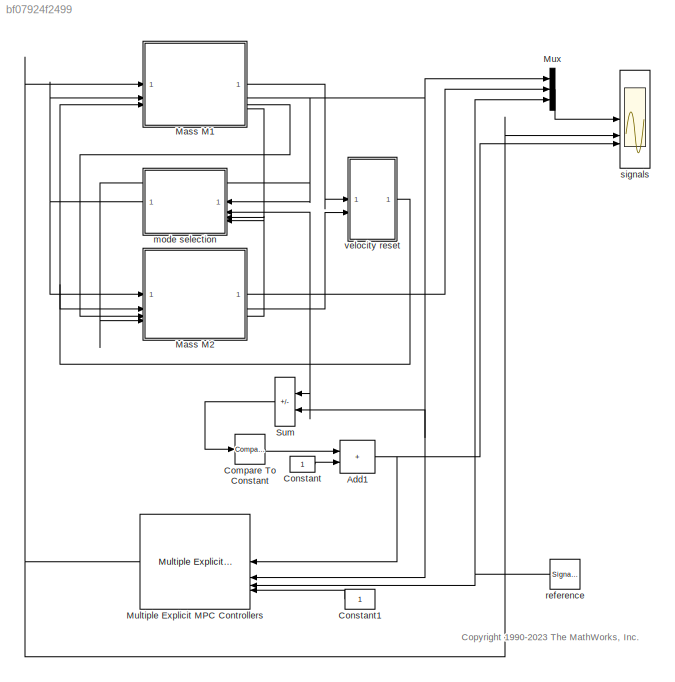
MODEL slx_bf07924f2499
KIND model
CONFIG AbsTol = auto
CONFIG EnableMultiTasking = off
CONFIG FixedStep = 1e-5
CONFIG MaxStep = auto
CONFIG MinStep = auto
CONFIG RelTol = 1e-3
CONFIG SampleTimeConstraint = Unconstrained
CONFIG SolverName = ode45
CONFIG StartTime = 0.0
CONFIG StopTime = 100
BLOCK [Sum] Add1
  IconShape = rectangular
BLOCK [Reference] Compare To Constant  REF=simulink/Logic and Bit
Operations/Compare
To Constant
  SourceBlock = simulink/Logic and Bit\nOperations/Compare\nTo Constant
  SourceType = Compare To Constant
BLOCK [Constant] Constant
BLOCK [Constant] Constant1
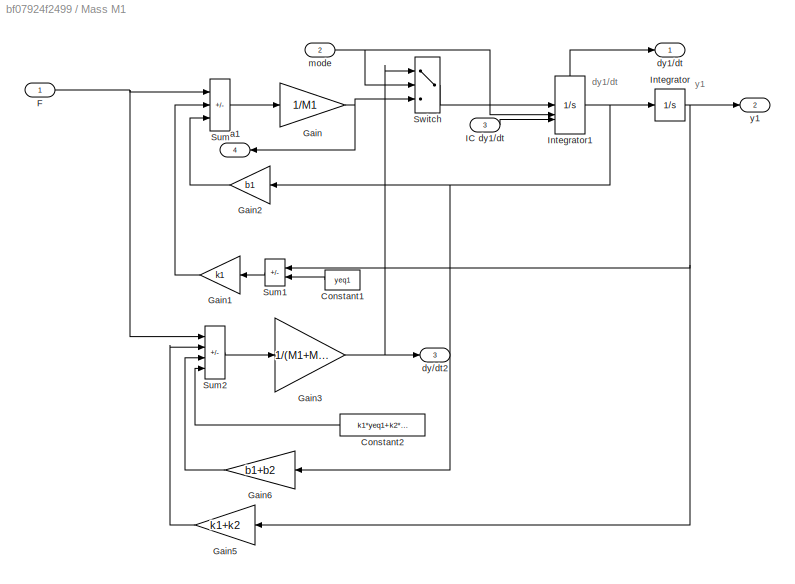
BLOCK [SubSystem] Mass M1
BLOCK [Constant] Mass M1/Constant1
  Value = yeq1
BLOCK [Constant] Mass M1/Constant2
  Value = k1*yeq1+k2*yeq2
BLOCK [Inport] Mass M1/F
BLOCK [Gain] Mass M1/Gain
  Gain = 1/M1
BLOCK [Gain] Mass M1/Gain1
  Gain = k1
BLOCK [Gain] Mass M1/Gain2
  Gain = b1
BLOCK [Gain] Mass M1/Gain3
  Gain = 1/(M1+M2)
BLOCK [Gain] Mass M1/Gain5
  Gain = k1+k2
BLOCK [Gain] Mass M1/Gain6
  Gain = b1+b2
BLOCK [Inport] Mass M1/IC dy1//dt
  Port = 3
BLOCK [Integrator] Mass M1/Integrator
  InitialCondition = y1initial
BLOCK [Integrator] Mass M1/Integrator1
  ExternalReset = rising
  InitialConditionSource = external
  ShowStatePort = on
BLOCK [Sum] Mass M1/Sum
  IconShape = rectangular
  Inputs = ---
BLOCK [Sum] Mass M1/Sum1
  IconShape = rectangular
  Inputs = +-
BLOCK [Sum] Mass M1/Sum2
  IconShape = rectangular
  Inputs = ---+
BLOCK [Switch] Mass M1/Switch
  InputSameDT = off
  SaturateOnIntegerOverflow = off
  Threshold = 0.5
BLOCK [Outport] Mass M1/a1
  Port = 4
BLOCK [Outport] Mass M1/dy//dt2
  Port = 3
BLOCK [Outport] Mass M1/dy1//dt
BLOCK [Inport] Mass M1/mode
  Port = 2
BLOCK [Outport] Mass M1/y1
  Port = 2
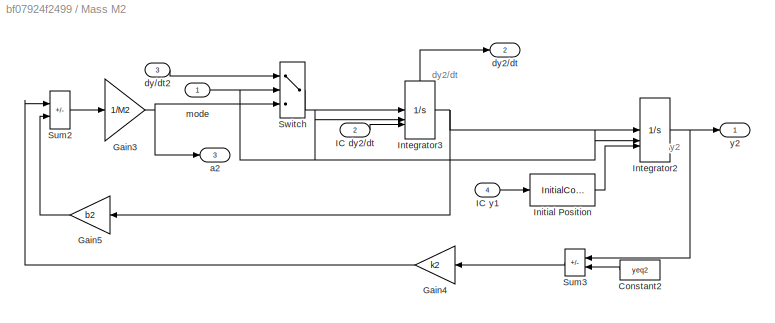
BLOCK [SubSystem] Mass M2
BLOCK [Constant] Mass M2/Constant2
  Value = yeq2
BLOCK [Gain] Mass M2/Gain3
  Gain = 1/M2
BLOCK [Gain] Mass M2/Gain4
  Gain = k2
BLOCK [Gain] Mass M2/Gain5
  Gain = b2
BLOCK [Inport] Mass M2/IC dy2//dt
  Port = 2
BLOCK [Inport] Mass M2/IC y1
  Port = 4
BLOCK [InitialCondition] Mass M2/Initial Position
  Value = y2initial
BLOCK [Integrator] Mass M2/Integrator2
  ExternalReset = rising
  InitialCondition = y2initial
  InitialConditionSource = external
BLOCK [Integrator] Mass M2/Integrator3
  ExternalReset = rising
  InitialConditionSource = external
  ShowStatePort = on
BLOCK [Sum] Mass M2/Sum2
  IconShape = rectangular
  Inputs = --
BLOCK [Sum] Mass M2/Sum3
  IconShape = rectangular
  Inputs = +-
BLOCK [Switch] Mass M2/Switch
  InputSameDT = off
  SaturateOnIntegerOverflow = off
  Threshold = 0.5
BLOCK [Outport] Mass M2/a2
  Port = 3
BLOCK [Inport] Mass M2/dy//dt2
  Port = 3
BLOCK [Outport] Mass M2/dy2//dt
  Port = 2
BLOCK [Inport] Mass M2/mode
BLOCK [Outport] Mass M2/y2
BLOCK [Reference] Multiple Explicit MPC Controllers  REF=mpclib/Multiple Explicit MPC Controllers  (lib defined in mdl_ae329e0e0455)
  SourceBlock = mpclib/Multiple Explicit MPC Controllers
  SourceType = Multiple Explicit MPC
BLOCK [Mux] Mux
  DisplayOption = bar
  Inputs = 3
BLOCK [Sum] Sum
  IconShape = rectangular
  Inputs = +-
  NameLocation = top
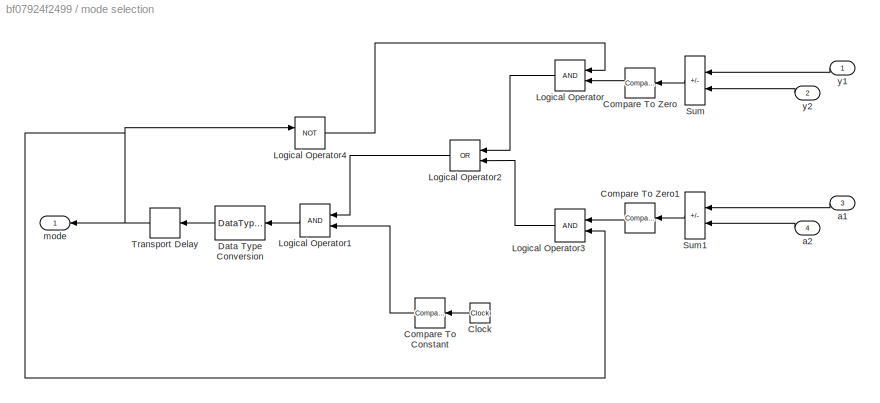
BLOCK [SubSystem] mode selection
BLOCK [Clock] mode selection/Clock
BLOCK [Reference] mode selection/Compare To Constant  REF=simulink/Logic and Bit
Operations/Compare
To Constant
  SourceBlock = simulink/Logic and Bit\nOperations/Compare\nTo Constant
  SourceType = Compare To Constant
BLOCK [Reference] mode selection/Compare To Zero  REF=simulink/Logic and Bit
Operations/Compare
To Zero
  SourceBlock = simulink/Logic and Bit\nOperations/Compare\nTo Zero
  SourceType = Compare To Zero
BLOCK [Reference] mode selection/Compare To Zero1  REF=simulink/Logic and Bit
Operations/Compare
To Zero
  SourceBlock = simulink/Logic and Bit\nOperations/Compare\nTo Zero
  SourceType = Compare To Zero
BLOCK [DataTypeConversion] mode selection/Data Type Conversion
  RndMeth = Floor
  SaturateOnIntegerOverflow = off
BLOCK [Logic] mode selection/Logical Operator
  AllPortsSameDT = off
  OutDataTypeStr = boolean
BLOCK [Logic] mode selection/Logical Operator1
  AllPortsSameDT = off
  OutDataTypeStr = boolean
BLOCK [Logic] mode selection/Logical Operator2
  AllPortsSameDT = off
  Operator = OR
  OutDataTypeStr = boolean
BLOCK [Logic] mode selection/Logical Operator3
  AllPortsSameDT = off
  OutDataTypeStr = boolean
BLOCK [Logic] mode selection/Logical Operator4
  AllPortsSameDT = off
  Operator = NOT
  OutDataTypeStr = boolean
BLOCK [Sum] mode selection/Sum
  IconShape = rectangular
  Inputs = +-
BLOCK [Sum] mode selection/Sum1
  IconShape = rectangular
  Inputs = +-
BLOCK [TransportDelay] mode selection/Transport Delay
  DelayTime = 1e-6
BLOCK [Inport] mode selection/a1
  Port = 3
BLOCK [Inport] mode selection/a2
  Port = 4
BLOCK [Outport] mode selection/mode
BLOCK [Inport] mode selection/y1
BLOCK [Inport] mode selection/y2
  Port = 2
BLOCK [SignalGenerator] reference
  Amplitude = 5
  Frequency = .015
  WaveForm = square
BLOCK [Scope] signals
  Floating = off
  NumInputPorts = 3
  ScopeSpecificationString = Simulink.scopes.TimeScopeBlockCfg('CurrentConfiguration', extmgr.ConfigurationSet(extmgr.Configuration('Core','General UI',true),extmgr.Configuration('Core','Source UI',true),extmgr.Configuration('Sources','WiredSimulink',true,'DataLoggingVariableName','ScopeData1','DataLoggingSaveFormat','Structure','DataLoggingLimitDataPoints',true,'DataLoggingDecimation','1','DataLoggingDecimateData',true),extm...<+3008ch>
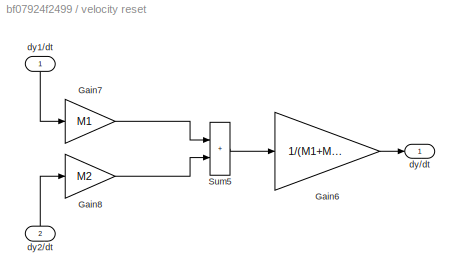
BLOCK [SubSystem] velocity reset
BLOCK [Gain] velocity reset/Gain6
  Gain = 1/(M1+M2)
BLOCK [Gain] velocity reset/Gain7
  Gain = M1
BLOCK [Gain] velocity reset/Gain8
  Gain = M2
BLOCK [Sum] velocity reset/Sum5
  IconShape = rectangular
BLOCK [Outport] velocity reset/dy//dt
BLOCK [Inport] velocity reset/dy1//dt
  NameLocation = right
BLOCK [Inport] velocity reset/dy2//dt
  NameLocation = right
  Port = 2
ANNOTATION (root): <copyright redacted>
ANNOTATION Mass M1: dy1/dt
ANNOTATION Mass M1: y1
ANNOTATION Mass M2: dy2/dt
ANNOTATION Mass M2: y2
NET Add1:1 -> Multiple Explicit MPC Controllers:1, signals:3
LINE Compare To Constant:1 -> Add1:1
LINE Constant1:1 -> Multiple Explicit MPC Controllers:4
LINE Constant:1 -> Add1:2
LINE Mass M1/Constant1:1 -> Mass M1/Sum1:2
LINE Mass M1/Constant2:1 -> Mass M1/Sum2:4
NET Mass M1/F:1 -> Mass M1/Sum2:1, Mass M1/Sum:1
LINE Mass M1/Gain1:1 -> Mass M1/Sum:2
LINE Mass M1/Gain2:1 -> Mass M1/Sum:3
NET Mass M1/Gain3:1 -> Mass M1/Switch:1, Mass M1/dy//dt2:1
LINE Mass M1/Gain5:1 -> Mass M1/Sum2:2
LINE Mass M1/Gain6:1 -> Mass M1/Sum2:3
NET Mass M1/Gain:1 -> Mass M1/Switch:3, Mass M1/a1:1
LINE Mass M1/IC dy1//dt:1 -> Mass M1/Integrator1:3
NET Mass M1/Integrator1:1 -> Mass M1/Gain2:1, Mass M1/Gain6:1, Mass M1/Integrator:1
LINE Mass M1/Integrator1:state -> Mass M1/dy1//dt:1
NET Mass M1/Integrator:1 -> Mass M1/Gain5:1, Mass M1/Sum1:1, Mass M1/y1:1
LINE Mass M1/Sum1:1 -> Mass M1/Gain1:1
LINE Mass M1/Sum2:1 -> Mass M1/Gain3:1
LINE Mass M1/Sum:1 -> Mass M1/Gain:1
LINE Mass M1/Switch:1 -> Mass M1/Integrator1:1
NET Mass M1/mode:1 -> Mass M1/Integrator1:2, Mass M1/Switch:2
LINE Mass M1:1 -> velocity reset:1
NET Mass M1:2 -> Mass M2:4, Multiple Explicit MPC Controllers:2, Mux:1, Sum:2, mode selection:1
LINE Mass M1:3 -> Mass M2:3
LINE Mass M1:4 -> mode selection:3
LINE Mass M2/Constant2:1 -> Mass M2/Sum3:2
NET Mass M2/Gain3:1 -> Mass M2/Switch:3, Mass M2/a2:1
LINE Mass M2/Gain4:1 -> Mass M2/Sum2:1
LINE Mass M2/Gain5:1 -> Mass M2/Sum2:2
LINE Mass M2/IC dy2//dt:1 -> Mass M2/Integrator3:3
LINE Mass M2/IC y1:1 -> Mass M2/Initial Position:1
LINE Mass M2/Initial Position:1 -> Mass M2/Integrator2:3
NET Mass M2/Integrator2:1 -> Mass M2/Sum3:1, Mass M2/y2:1
NET Mass M2/Integrator3:1 -> Mass M2/Gain5:1, Mass M2/Integrator2:1
LINE Mass M2/Integrator3:state -> Mass M2/dy2//dt:1
LINE Mass M2/Sum2:1 -> Mass M2/Gain3:1
LINE Mass M2/Sum3:1 -> Mass M2/Gain4:1
LINE Mass M2/Switch:1 -> Mass M2/Integrator3:1
LINE Mass M2/dy//dt2:1 -> Mass M2/Switch:1
NET Mass M2/mode:1 -> Mass M2/Integrator2:2, Mass M2/Integrator3:2, Mass M2/Switch:2
NET Mass M2:1 -> Mux:2, Sum:1, mode selection:2
LINE Mass M2:2 -> velocity reset:2
LINE Mass M2:3 -> mode selection:4
NET Multiple Explicit MPC Controllers:1 -> Mass M1:1, signals:2
LINE Mux:1 -> signals:1
LINE Sum:1 -> Compare To Constant:1
LINE mode selection/Clock:1 -> mode selection/Compare To Constant:1
LINE mode selection/Compare To Constant:1 -> mode selection/Logical Operator1:2
LINE mode selection/Compare To Zero1:1 -> mode selection/Logical Operator3:1
LINE mode selection/Compare To Zero:1 -> mode selection/Logical Operator:2
LINE mode selection/Data Type Conversion:1 -> mode selection/Transport Delay:1
LINE mode selection/Logical Operator1:1 -> mode selection/Data Type Conversion:1
LINE mode selection/Logical Operator2:1 -> mode selection/Logical Operator1:1
LINE mode selection/Logical Operator3:1 -> mode selection/Logical Operator2:2
LINE mode selection/Logical Operator4:1 -> mode selection/Logical Operator:1
LINE mode selection/Logical Operator:1 -> mode selection/Logical Operator2:1
LINE mode selection/Sum1:1 -> mode selection/Compare To Zero1:1
LINE mode selection/Sum:1 -> mode selection/Compare To Zero:1
NET mode selection/Transport Delay:1 -> mode selection/Logical Operator3:2, mode selection/Logical Operator4:1, mode selection/mode:1
LINE mode selection/a1:1 -> mode selection/Sum1:1
LINE mode selection/a2:1 -> mode selection/Sum1:2
LINE mode selection/y1:1 -> mode selection/Sum:1
LINE mode selection/y2:1 -> mode selection/Sum:2
NET mode selection:1 -> Mass M1:2, Mass M2:1
NET reference:1 -> Multiple Explicit MPC Controllers:3, Mux:3
LINE velocity reset/Gain6:1 -> velocity reset/dy//dt:1
LINE velocity reset/Gain7:1 -> velocity reset/Sum5:1
LINE velocity reset/Gain8:1 -> velocity reset/Sum5:2
LINE velocity reset/Sum5:1 -> velocity reset/Gain6:1
LINE velocity reset/dy1//dt:1 -> velocity reset/Gain7:1
LINE velocity reset/dy2//dt:1 -> velocity reset/Gain8:1
NET velocity reset:1 -> Mass M1:3, Mass M2:2
note: NET lines group one-source signal fan-out (src -> all destinations, sorted); 1:1 wires keep LINE
